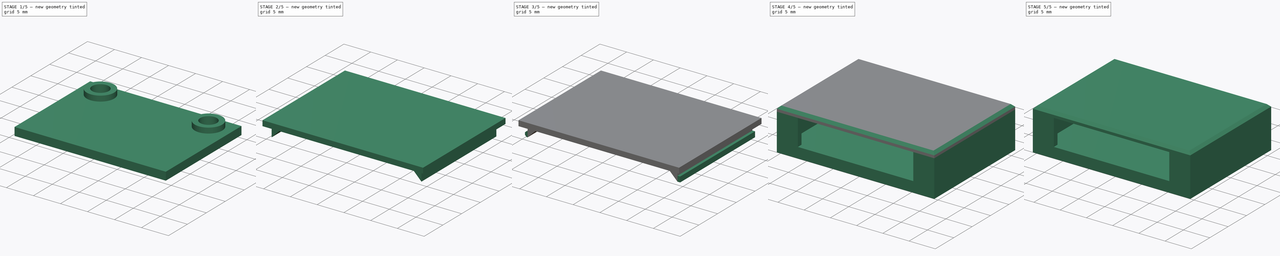
[diagram: build sequence overview — one tinted view per stage of 5, left to right]
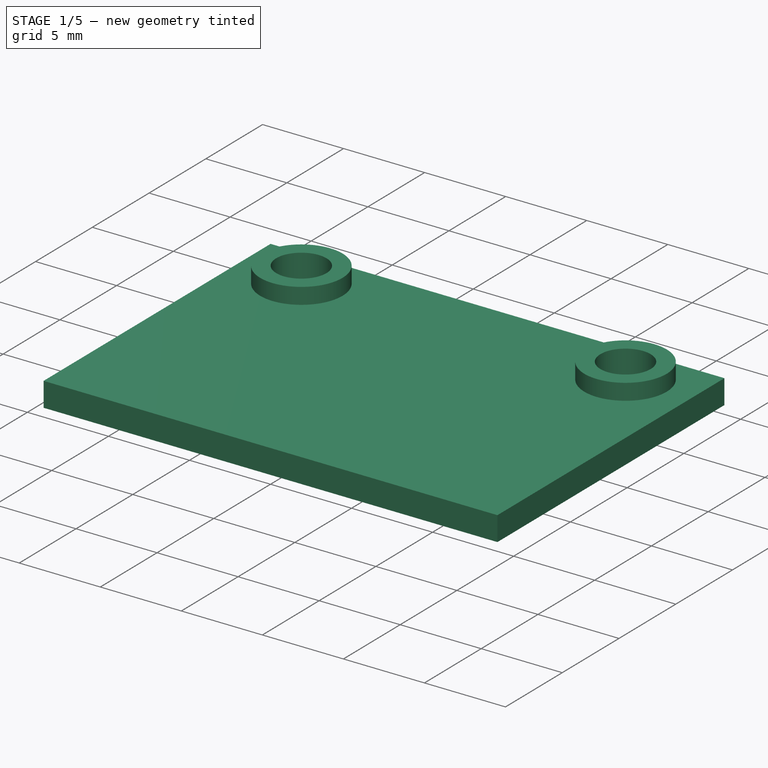
[diagram: stage 1 of 5 — iso view after this stage's code; geometry added in this stage tinted green]
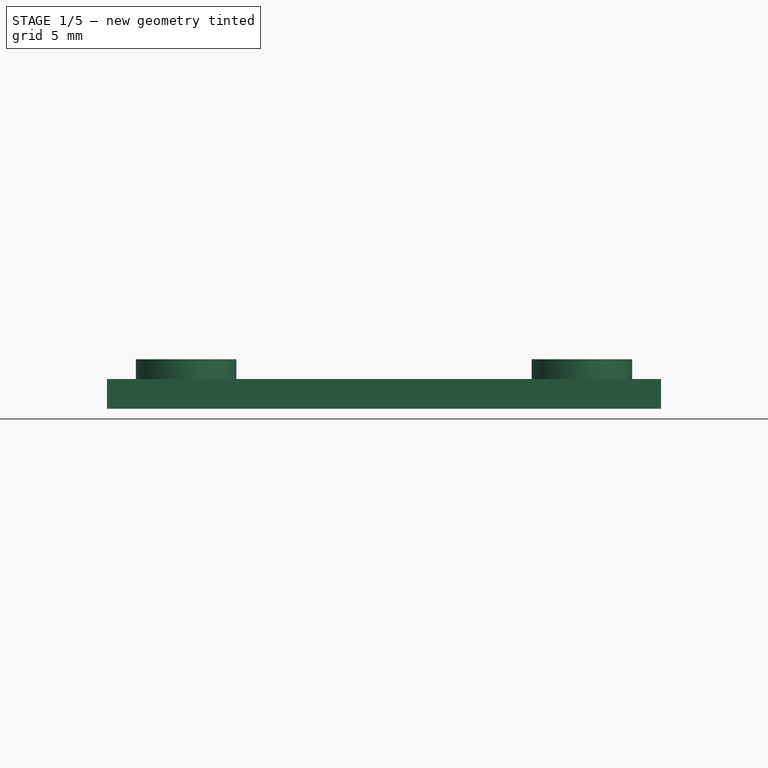
[diagram: stage 1 of 5 — front view after this stage's code; geometry added in this stage tinted green]
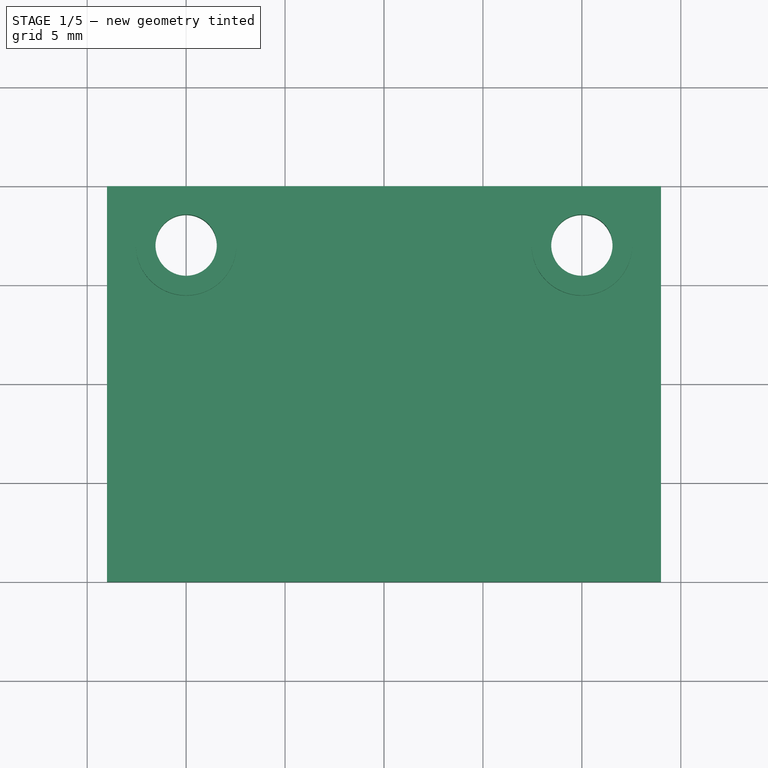
[diagram: stage 1 of 5 — top view after this stage's code; geometry added in this stage tinted green]
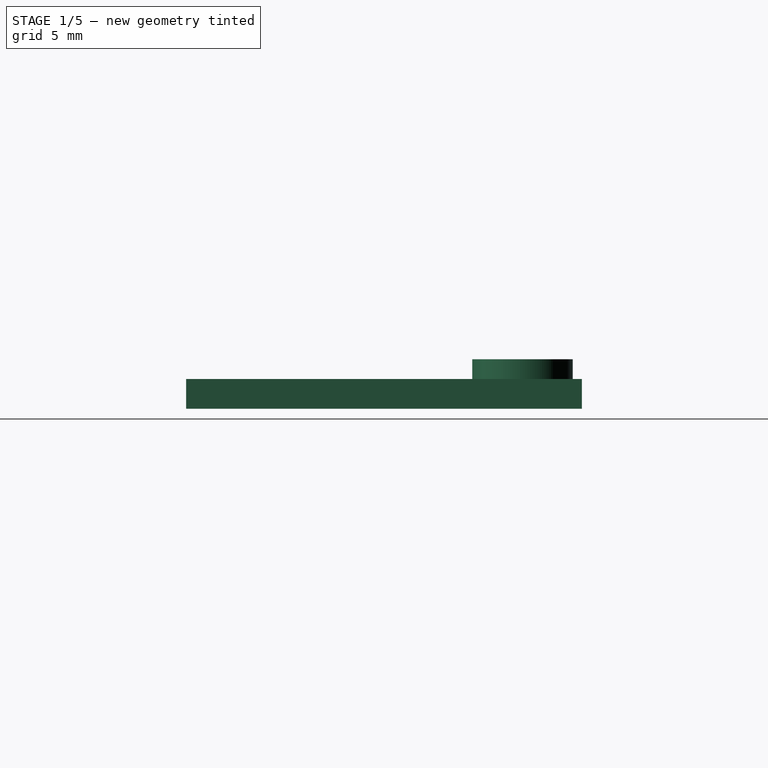
[diagram: stage 1 of 5 — right view after this stage's code; geometry added in this stage tinted green]
FCSTD DOCUMENT  (FreeCAD 0.18R16093 +53 (Git))
Label: imu_housing
License: All rights reserved
LicenseURL: http://en.wikipedia.org/wiki/All_rights_reserved
objects: Sketcher::SketchObject×11, PartDesign::Chamfer×9, PartDesign::Pad×7, PartDesign::Pocket×6, PartDesign::Body×2, PartDesign::Plane×1, PartDesign::ShapeBinder×1
note: 50 computed .brp shape members not serialized (recipe doc carries the construction recipe); baked Part::Feature solids carry a one-line shape summary decoded from their .brp

FEATURE [Sketcher::SketchObject] Sketch
  MapMode = 5
  Support = -> [XY_Plane]
  sketch-geometry (7):
    g0: LineSegment StartX=-14 StartY=10 StartZ=0 EndX=14 EndY=10 EndZ=0
    g1: LineSegment StartX=14 StartY=10 StartZ=0 EndX=14 EndY=-10 EndZ=0
    g2: LineSegment StartX=14 StartY=-10 StartZ=0 EndX=-14 EndY=-10 EndZ=0
    g3: LineSegment StartX=-14 StartY=-10 StartZ=0 EndX=-14 EndY=10 EndZ=0
    g4: LineSegment [constr] StartX=-14 StartY=10 StartZ=0 EndX=0 EndY=-1.8e-15 EndZ=0
    g5: LineSegment [constr] StartX=0 StartY=-1.8e-15 StartZ=0 EndX=14 EndY=10 EndZ=0
    g6: GeomPoint X=-14 Y=0 Z=0
  constraints (17):
    c: Coincident(g0,g1)
    c: Coincident(g1,g2)
    c: Coincident(g2,g3)
    c: Coincident(g3,g0)
    c: Horizontal(g0)
    c: Horizontal(g2)
    c: Vertical(g1)
    c: Vertical(g3)
    c: DistanceX(g0,g0) = 28
    c: DistanceY(g3,g3) = 20
    c: Coincident(g4,g0)
    c: Coincident(g4,g-1)
    c: Coincident(g5,g4)
    c: Coincident(g5,g0)
    c: Equal(g4,g5)
    c: Symmetric(g0,g2,g6)
    c: PointOnObject(g6,g-1)
FEATURE [PartDesign::Pad] Pad
  Length = 1.5
  Length2 = 100
  Profile = -> Sketch
  Reversed = true
  Type = 0
FEATURE [Sketcher::SketchObject] Sketch001
  ExternalGeometry = -> [Sketch]
  MapMode = 5
  Support = -> [Pad]
  sketch-geometry (6):
    g0: Circle CenterX=-10 CenterY=7 CenterZ=0 NormalX=0 NormalY=0 NormalZ=1 AngleXU=0 Radius=1.55
    g1: Circle CenterX=10 CenterY=7 CenterZ=0 NormalX=0 NormalY=0 NormalZ=1 AngleXU=0 Radius=1.55
    g2: LineSegment [constr] StartX=-10 StartY=7 StartZ=0 EndX=0 EndY=9e-16 EndZ=0
    g3: LineSegment [constr] StartX=0 StartY=0 StartZ=0 EndX=10 EndY=7 EndZ=0
    g4: Circle CenterX=-10 CenterY=7 CenterZ=0 NormalX=0 NormalY=0 NormalZ=1 AngleXU=0 Radius=2.53993
    g5: Circle CenterX=10 CenterY=7 CenterZ=0 NormalX=0 NormalY=0 NormalZ=1 AngleXU=0 Radius=2.53993
  constraints (13):
    c: Diameter(g0) = 3.1
    c: Equal(g0,g1)
    c: Horizontal(g0,g1)
    c: Coincident(g2,g0)
    c: Coincident(g2,g-1)
    c: Coincident(g3,g-1)
    c: Coincident(g3,g1)
    c: Equal(g2,g3)
    c: DistanceX(g0,g1) = 20
    c: DistanceY(g0,g-3) = 3
    c: Coincident(g4,g0)
    c: Coincident(g5,g1)
    c: Equal(g4,g5)
FEATURE [PartDesign::Pad] Pad001
  BaseFeature = -> Pad
  Length = 1
  Length2 = 100
  Profile = -> Sketch001
  Type = 0
FEATURE [PartDesign::Pocket] Pocket
  BaseFeature = -> Pad001
  Length = 5
  Length2 = 100
  Profile = -> Pad001 [Face14]
  Type = 1
FEATURE [PartDesign::Pocket] Pocket001
  BaseFeature = -> Pocket
  Length = 5
  Length2 = 100
  Profile = -> Pocket [Face14]
  Type = 1
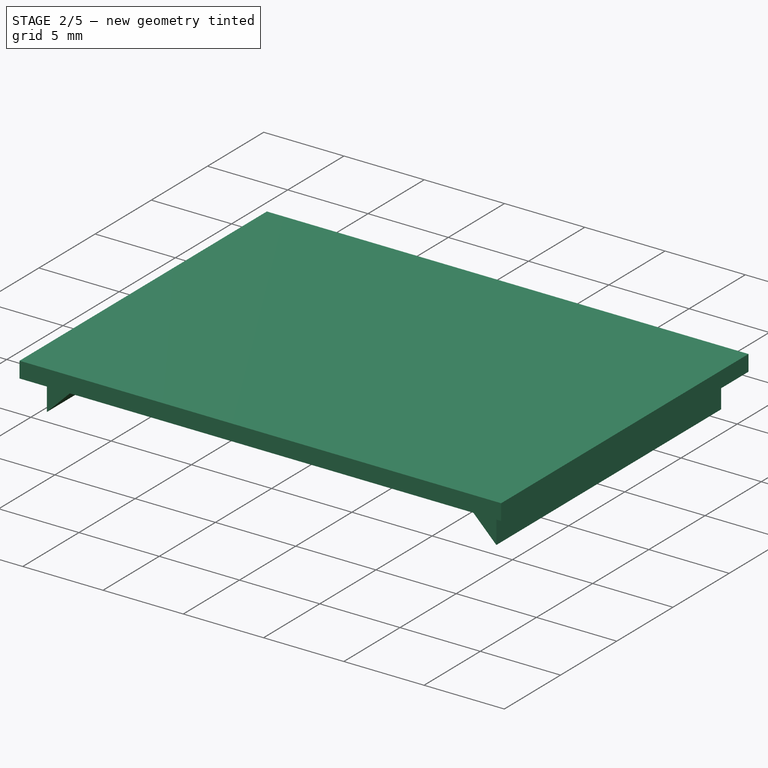
[diagram: stage 2 of 5 — iso view after this stage's code; geometry added in this stage tinted green]
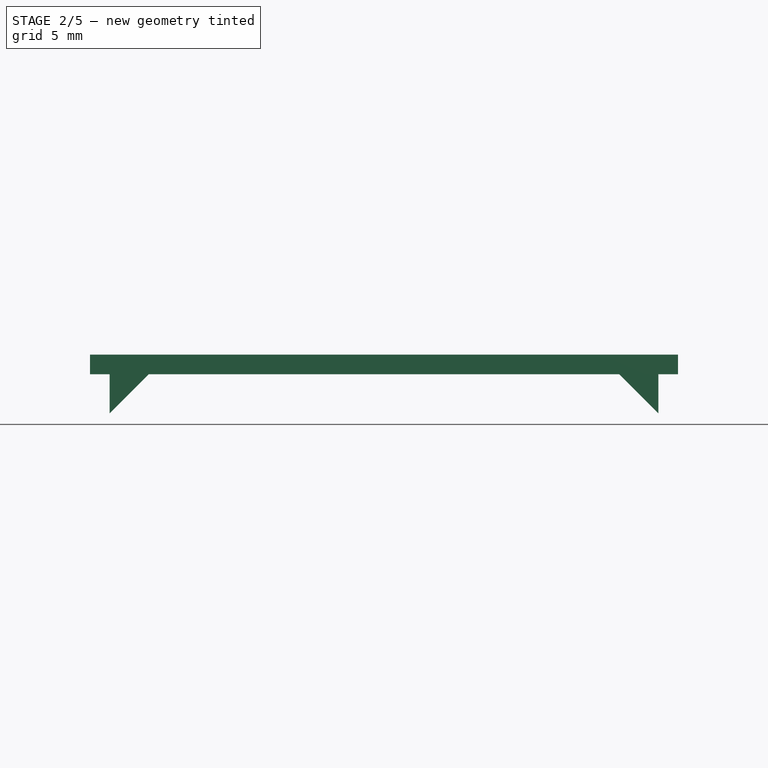
[diagram: stage 2 of 5 — front view after this stage's code; geometry added in this stage tinted green]
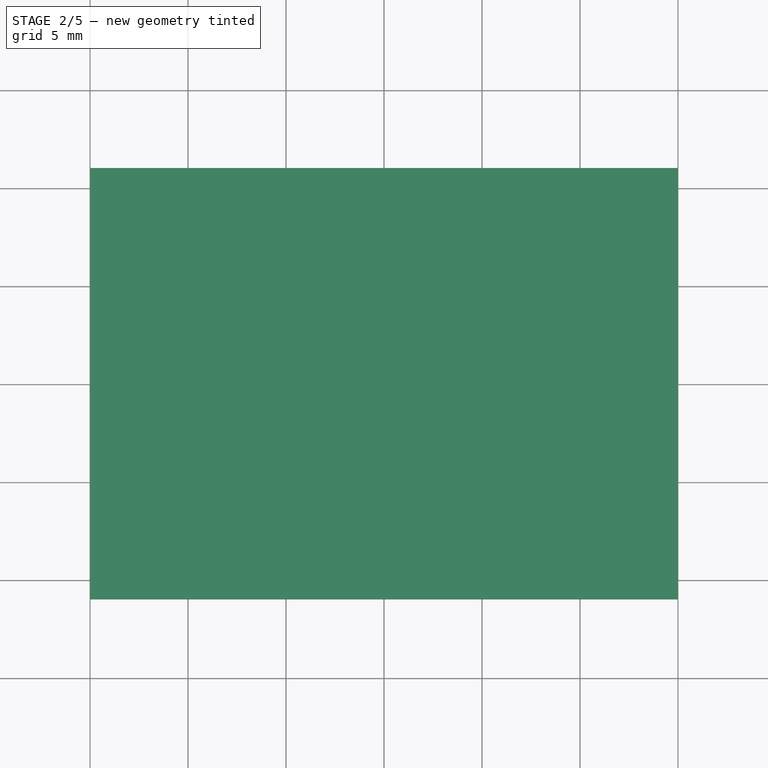
[diagram: stage 2 of 5 — top view after this stage's code; geometry added in this stage tinted green]
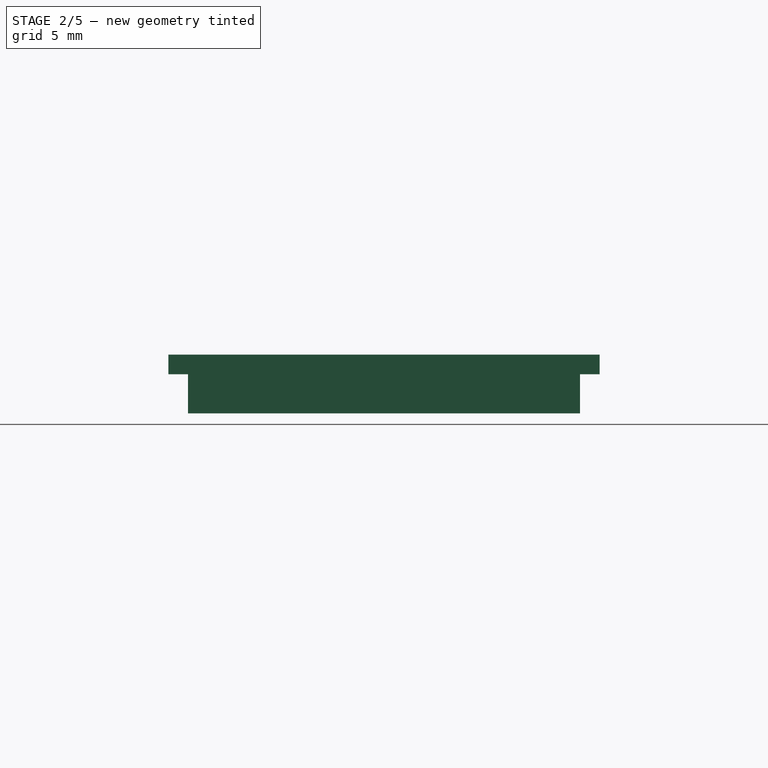
[diagram: stage 2 of 5 — right view after this stage's code; geometry added in this stage tinted green]
FEATURE [PartDesign::Plane] DatumPlane
  Length = 35.1381
  MapMode = 5
  Placement = pos=(0,0,-1.5) rot=(1,0,0;3.14159rad)
  ResizeMode = 0
  Support = -> [Pocket001]
  Width = 27.1381
FEATURE [Sketcher::SketchObject] Sketch002
  ExternalGeometry = -> [Sketch]
  MapMode = 5
  Placement = pos=(0,0,-1.5) rot=(1,0,0;3.14159rad)
  Support = -> [DatumPlane]
  sketch-geometry (8):
    g0: LineSegment StartX=-14 StartY=-10 StartZ=0 EndX=14 EndY=-10 EndZ=0
    g1: LineSegment StartX=14 StartY=-10 StartZ=0 EndX=14 EndY=10 EndZ=0
    g2: LineSegment StartX=14 StartY=10 StartZ=0 EndX=-14 EndY=10 EndZ=0
    g3: LineSegment StartX=-14 StartY=10 StartZ=0 EndX=-14 EndY=-10 EndZ=0
    g4: LineSegment StartX=-15 StartY=11 StartZ=0 EndX=15 EndY=11 EndZ=0
    g5: LineSegment StartX=15 StartY=11 StartZ=0 EndX=15 EndY=-11 EndZ=0
    g6: LineSegment StartX=15 StartY=-11 StartZ=0 EndX=-15 EndY=-11 EndZ=0
    g7: LineSegment StartX=-15 StartY=-11 StartZ=0 EndX=-15 EndY=11 EndZ=0
  constraints (20):
    c: Coincident(g0,g1)
    c: Coincident(g1,g2)
    c: Coincident(g2,g3)
    c: Coincident(g3,g0)
    c: Tangent(g2,g-5)
    c: Tangent(g3,g-3)
    c: Tangent(g1,g-7)
    c: Tangent(g0,g-4)
    c: Coincident(g4,g5)
    c: Coincident(g5,g6)
    c: Coincident(g6,g7)
    c: Coincident(g7,g4)
    c: Horizontal(g4)
    c: Horizontal(g6)
    c: Vertical(g5)
    c: Vertical(g7)
    c: DistanceY(g2,g4) = 1
    c: DistanceX(g4,g2) = 1
    c: DistanceX(g0,g5) = 1
    c: DistanceY(g5,g0) = 1
FEATURE [PartDesign::Pad] Pad002
  BaseFeature = -> Pocket001
  Length = 7
  Length2 = 100
  Profile = -> Sketch002
  Reversed = true
  Type = 0
FEATURE [Sketcher::SketchObject] Sketch003
  ExternalGeometry = -> [Pad002]
  MapMode = 5
  Placement = pos=(0,-11,0) rot=(1,0,0;1.5708rad)
  Support = -> [Pad002]
  sketch-geometry (6):
    g0: LineSegment StartX=-11 StartY=5.5 StartZ=0 EndX=11 EndY=5.5 EndZ=0
    g1: LineSegment StartX=11 StartY=5.5 StartZ=0 EndX=11 EndY=0.5 EndZ=0
    g2: LineSegment StartX=11 StartY=0.5 StartZ=0 EndX=-11 EndY=0.5 EndZ=0
    g3: LineSegment StartX=-11 StartY=0.5 StartZ=0 EndX=-11 EndY=5.5 EndZ=0
    g4: LineSegment [constr] StartX=-11 StartY=5.5 StartZ=0 EndX=0 EndY=0 EndZ=0
    g5: LineSegment [constr] StartX=0 StartY=0 StartZ=0 EndX=11 EndY=5.5 EndZ=0
  constraints (15):
    c: Coincident(g0,g1)
    c: Coincident(g1,g2)
    c: Coincident(g2,g3)
    c: Coincident(g3,g0)
    c: Horizontal(g2)
    c: Vertical(g1)
    c: Vertical(g3)
    c: Tangent(g0,g-5)
    c: DistanceY(g3,g3) = 5
    c: Coincident(g4,g0)
    c: Coincident(g4,g-1)
    c: Coincident(g5,g-1)
    c: Coincident(g5,g0)
    c: Equal(g4,g5)
    c: DistanceX(g2,g-1) = 11
FEATURE [PartDesign::Pocket] Pocket002
  BaseFeature = -> Pad002
  Length = 2
  Length2 = 100
  Profile = -> Sketch003
  Type = 0
FEATURE [PartDesign::ShapeBinder] ShapeBinder
  Support = -> [Pocket002]
  TraceSupport = false
FEATURE [Sketcher::SketchObject] Sketch004
  ExternalGeometry = -> [ShapeBinder]
  MapMode = 5
  Placement = pos=(0,0,5.5) rot=(0,0,1;0rad)
  Support = -> [ShapeBinder]
  sketch-geometry (4):
    g0: LineSegment StartX=-15 StartY=11 StartZ=0 EndX=15 EndY=11 EndZ=0
    g1: LineSegment StartX=15 StartY=11 StartZ=0 EndX=15 EndY=-11 EndZ=0
    g2: LineSegment StartX=15 StartY=-11 StartZ=0 EndX=-15 EndY=-11 EndZ=0
    g3: LineSegment StartX=-15 StartY=-11 StartZ=0 EndX=-15 EndY=11 EndZ=0
  constraints (10):
    c: Coincident(g0,g1)
    c: Coincident(g1,g2)
    c: Coincident(g2,g3)
    c: Coincident(g3,g0)
    c: Horizontal(g0)
    c: Horizontal(g2)
    c: Vertical(g1)
    c: Vertical(g3)
    c: Coincident(g0,g-4)
    c: Coincident(g1,g-5)
FEATURE [PartDesign::Pad] Pad003
  Length = 1
  Length2 = 100
  Profile = -> Sketch004
  Type = 0
FEATURE [Sketcher::SketchObject] Sketch005
  ExternalGeometry = -> [ShapeBinder]
  MapMode = 5
  Placement = pos=(0,0,5.5) rot=(1,0,0;3.14159rad)
  Support = -> [Pad003]
  sketch-geometry (8):
    g0: LineSegment StartX=-14 StartY=10 StartZ=0 EndX=-12 EndY=10 EndZ=0
    g1: LineSegment StartX=-12 StartY=10 StartZ=0 EndX=-12 EndY=-10 EndZ=0
    g2: LineSegment StartX=-12 StartY=-10 StartZ=0 EndX=-14 EndY=-10 EndZ=0
    g3: LineSegment StartX=-14 StartY=-10 StartZ=0 EndX=-14 EndY=10 EndZ=0
    g4: LineSegment StartX=14 StartY=10 StartZ=0 EndX=12 EndY=10 EndZ=0
    g5: LineSegment StartX=12 StartY=10 StartZ=0 EndX=12 EndY=-10 EndZ=0
    g6: LineSegment StartX=12 StartY=-10 StartZ=0 EndX=14 EndY=-10 EndZ=0
    g7: LineSegment StartX=14 StartY=-10 StartZ=0 EndX=14 EndY=10 EndZ=0
  constraints (20):
    c: Coincident(g0,g1)
    c: Coincident(g1,g2)
    c: Coincident(g2,g3)
    c: Coincident(g3,g0)
    c: Horizontal(g0)
    c: Horizontal(g2)
    c: Vertical(g1)
    c: Coincident(g0,g-3)
    c: Coincident(g-3,g2)
    c: DistanceX(g0,g0) = 2
    c: Coincident(g4,g5)
    c: Coincident(g5,g6)
    c: Coincident(g6,g7)
    c: Coincident(g7,g4)
    c: Horizontal(g4)
    c: Horizontal(g6)
    c: Vertical(g5)
    c: Coincident(g4,g-4)
    c: Coincident(g6,g-4)
    c: Equal(g0,g4)
FEATURE [PartDesign::Pad] Pad004
  BaseFeature = -> Pad003
  Length = 2
  Length2 = 100
  Profile = -> Sketch005
  Type = 0
FEATURE [Sketcher::SketchObject] Sketch006
  ExternalGeometry = -> [Pad004]
  MapMode = 5
  Placement = pos=(0,-10,0) rot=(1,0,0;1.5708rad)
  Support = -> [Pad004]
  sketch-geometry (6):
    g0: LineSegment StartX=-14 StartY=3.5 StartZ=0 EndX=-12 EndY=5.5 EndZ=0
    g1: LineSegment StartX=-14 StartY=3.5 StartZ=0 EndX=-12 EndY=3.5 EndZ=0
    g2: LineSegment StartX=-12 StartY=3.5 StartZ=0 EndX=-12 EndY=5.5 EndZ=0
    g3: LineSegment StartX=12 StartY=5.5 StartZ=0 EndX=14 EndY=3.5 EndZ=0
    g4: LineSegment StartX=12 StartY=3.5 StartZ=0 EndX=12 EndY=5.5 EndZ=0
    g5: LineSegment StartX=12 StartY=3.5 StartZ=0 EndX=14 EndY=3.5 EndZ=0
  constraints (12):
    c: Coincident(g0,g-5)
    c: Coincident(g0,g-3)
    c: Coincident(g1,g-4)
    c: Coincident(g2,g1)
    c: Coincident(g2,g0)
    c: Coincident(g0,g1)
    c: Coincident(g4,g3)
    c: Coincident(g5,g4)
    c: Coincident(g5,g3)
    c: Coincident(g3,g-6)
    c: Coincident(g4,g-7)
    c: Coincident(g-8,g3)
FEATURE [PartDesign::Pocket] Pocket003
  BaseFeature = -> Pad004
  Length = 5
  Length2 = 100
  Profile = -> Sketch006
  Type = 1
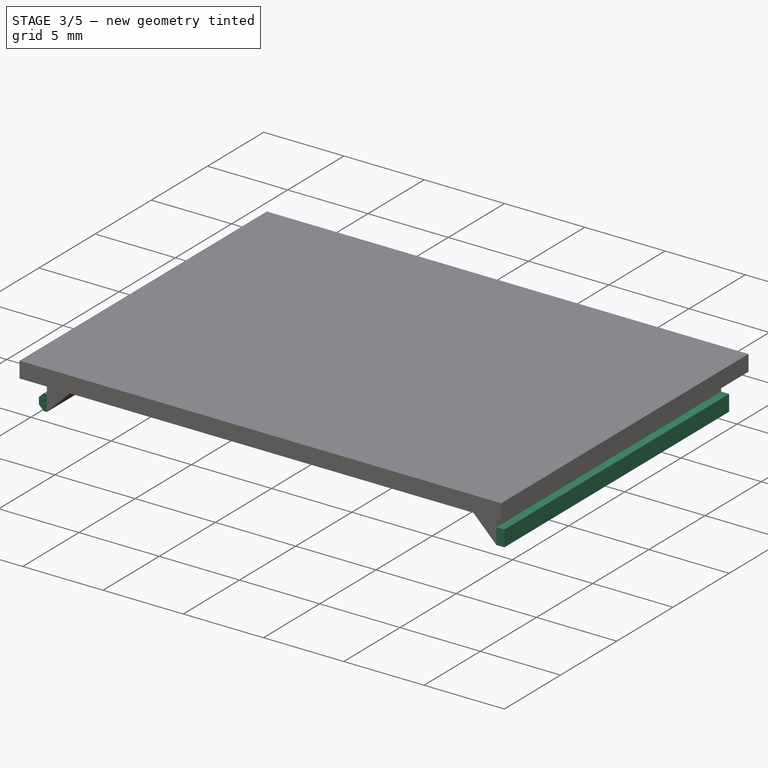
[diagram: stage 3 of 5 — iso view after this stage's code; geometry added in this stage tinted green]
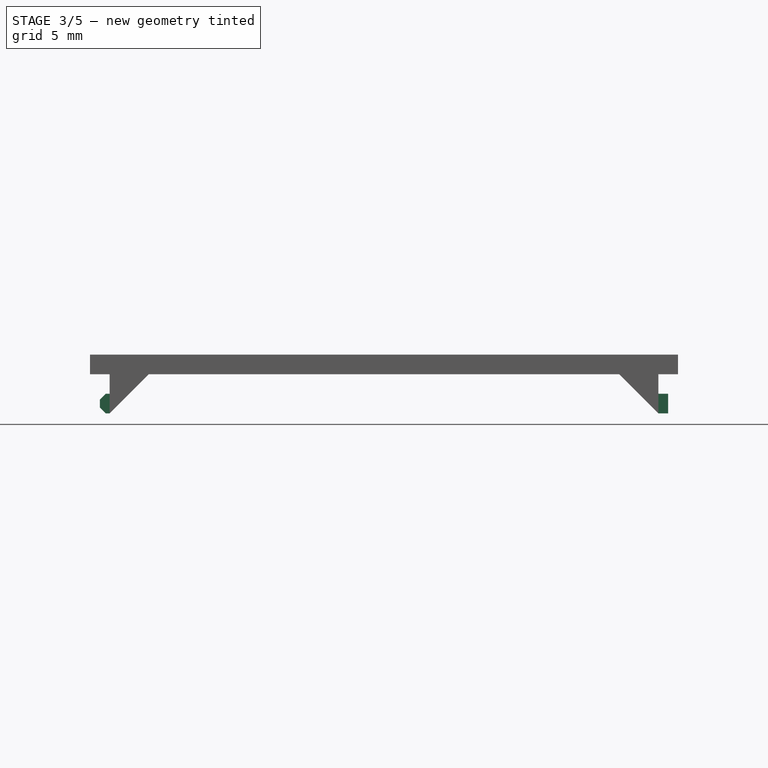
[diagram: stage 3 of 5 — front view after this stage's code; geometry added in this stage tinted green]
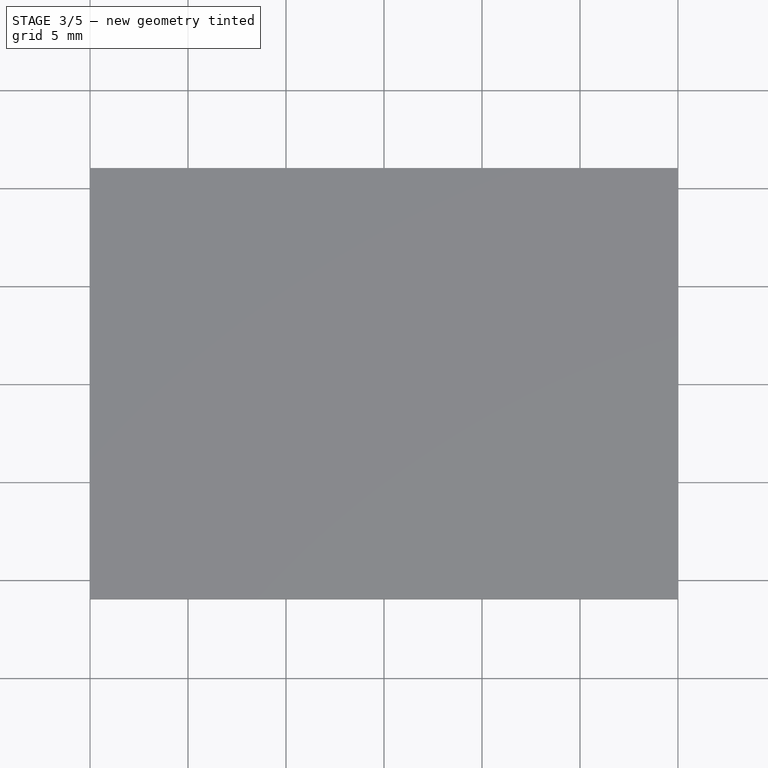
[diagram: stage 3 of 5 — top view after this stage's code; geometry added in this stage tinted green]
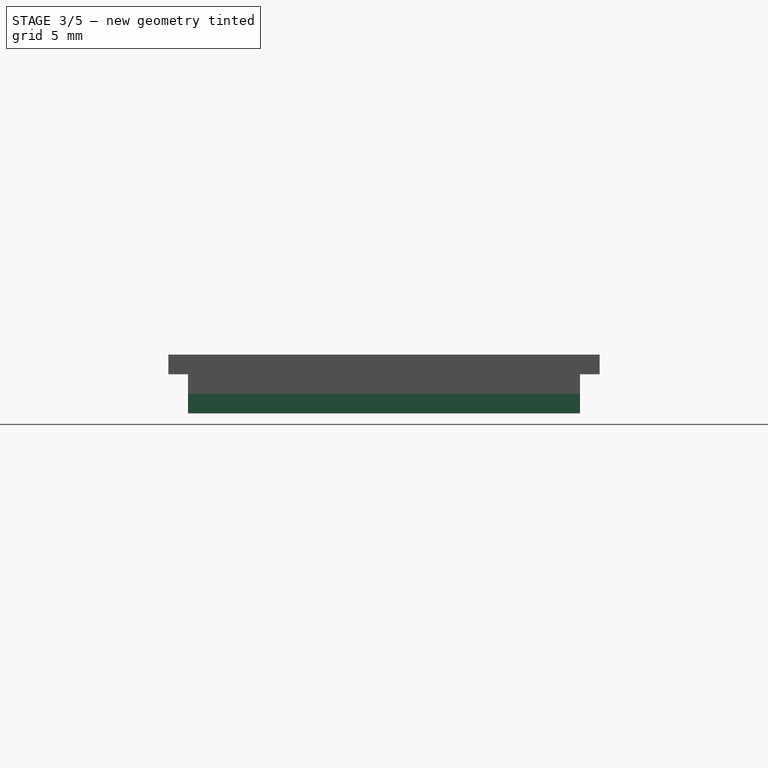
[diagram: stage 3 of 5 — right view after this stage's code; geometry added in this stage tinted green]
FEATURE [Sketcher::SketchObject] Sketch007
  ExternalGeometry = -> [Pocket003]
  MapMode = 5
  Placement = pos=(-14,0,0) rot=(0.57735,-0.57735,-0.57735;2.0944rad)
  Support = -> [Pocket003]
  sketch-geometry (4):
    g0: LineSegment StartX=-10 StartY=3.5 StartZ=0 EndX=10 EndY=3.5 EndZ=0
    g1: LineSegment StartX=10 StartY=3.5 StartZ=0 EndX=10 EndY=4.5 EndZ=0
    g2: LineSegment StartX=10 StartY=4.5 StartZ=0 EndX=-10 EndY=4.5 EndZ=0
    g3: LineSegment StartX=-10 StartY=4.5 StartZ=0 EndX=-10 EndY=3.5 EndZ=0
  constraints (10):
    c: Coincident(g0,g1)
    c: Coincident(g1,g2)
    c: Coincident(g2,g3)
    c: Coincident(g3,g0)
    c: Horizontal(g2)
    c: Vertical(g1)
    c: Vertical(g3)
    c: Coincident(g-3,g0)
    c: Coincident(g0,g-4)
    c: DistanceY(g3,g3) = 1
FEATURE [PartDesign::Pad] Pad005
  BaseFeature = -> Pocket003
  Length = 0.5
  Length2 = 100
  Profile = -> Sketch007
  Type = 0
FEATURE [PartDesign::Chamfer] Chamfer
  Base = -> Pad005 [Edge44]
  BaseFeature = -> Pad005
  Size = 0.3
FEATURE [PartDesign::Chamfer] Chamfer001
  Base = -> Chamfer [Edge14]
  BaseFeature = -> Chamfer
  Size = 0.3
FEATURE [Sketcher::SketchObject] Sketch008
  ExternalGeometry = -> [Chamfer001]
  MapMode = 5
  Placement = pos=(14,0,0) rot=(0.57735,0.57735,0.57735;2.0944rad)
  Support = -> [Chamfer001]
  sketch-geometry (4):
    g0: LineSegment StartX=-10 StartY=4.5 StartZ=0 EndX=10 EndY=4.5 EndZ=0
    g1: LineSegment StartX=10 StartY=4.5 StartZ=0 EndX=10 EndY=3.5 EndZ=0
    g2: LineSegment StartX=10 StartY=3.5 StartZ=0 EndX=-10 EndY=3.5 EndZ=0
    g3: LineSegment StartX=-10 StartY=3.5 StartZ=0 EndX=-10 EndY=4.5 EndZ=0
  constraints (10):
    c: Coincident(g0,g1)
    c: Coincident(g1,g2)
    c: Coincident(g2,g3)
    c: Coincident(g3,g0)
    c: Horizontal(g0)
    c: Vertical(g1)
    c: Vertical(g3)
    c: Coincident(g2,g-4)
    c: Coincident(g-3,g1)
    c: DistanceY(g3,g3) = 1
FEATURE [PartDesign::Pad] Pad006
  BaseFeature = -> Chamfer001
  Length = 0.5
  Length2 = 100
  Profile = -> Sketch008
  Type = 0
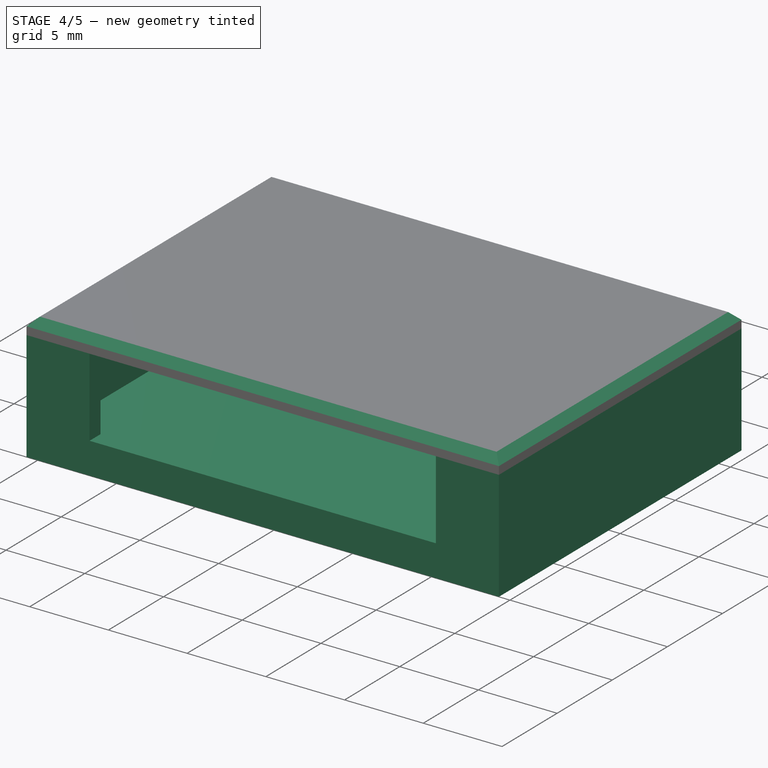
[diagram: stage 4 of 5 — iso view after this stage's code; geometry added in this stage tinted green]
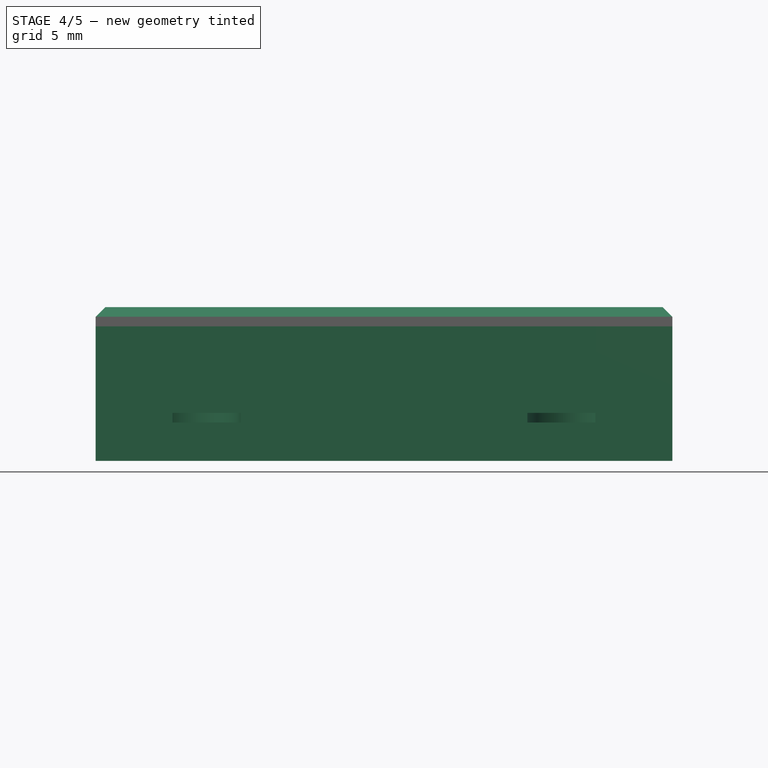
[diagram: stage 4 of 5 — front view after this stage's code; geometry added in this stage tinted green]
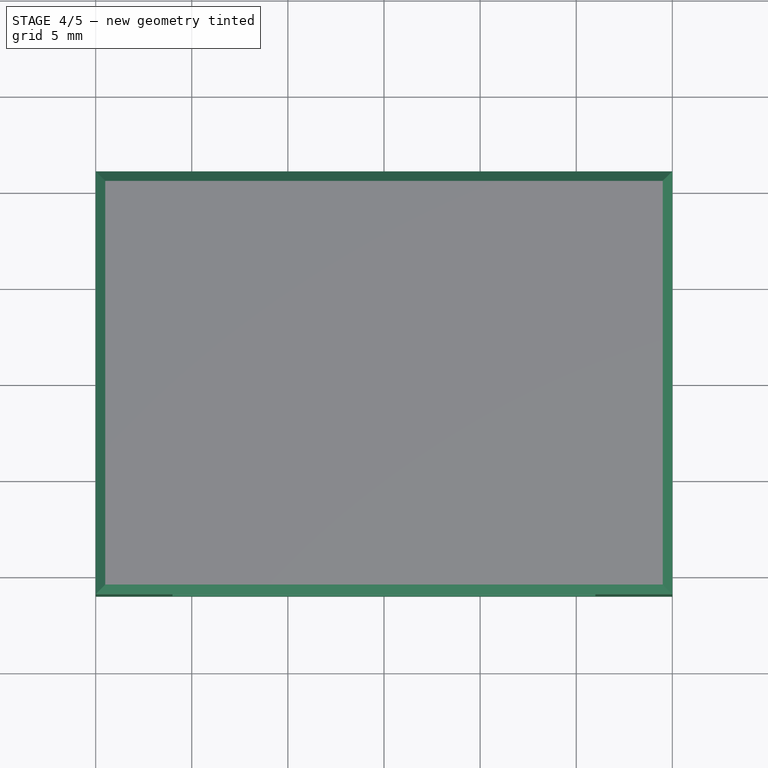
[diagram: stage 4 of 5 — top view after this stage's code; geometry added in this stage tinted green]
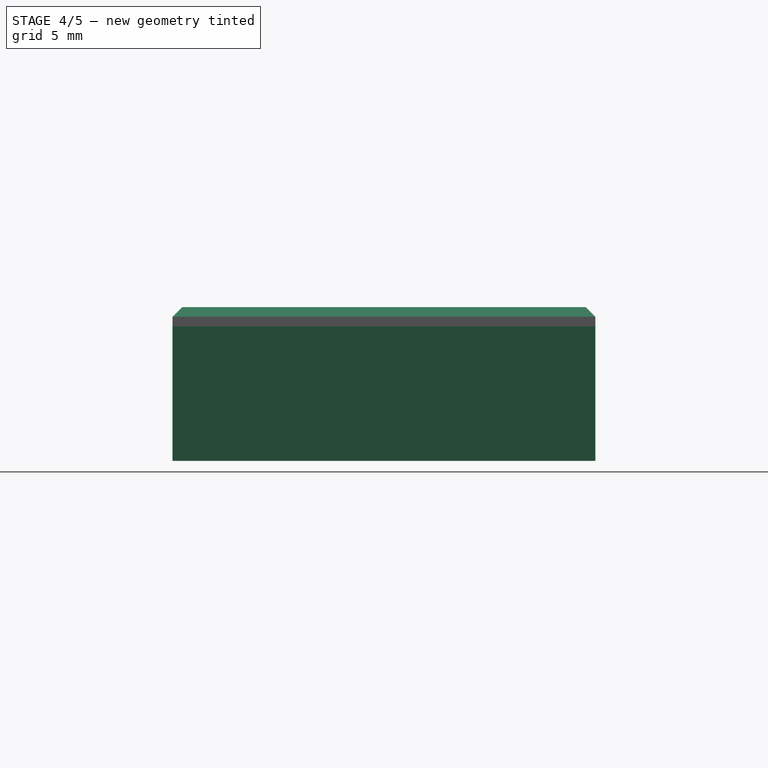
[diagram: stage 4 of 5 — right view after this stage's code; geometry added in this stage tinted green]
FEATURE [PartDesign::Chamfer] Chamfer002
  Base = -> Pad006 [Edge59]
  BaseFeature = -> Pad006
  Size = 0.3
FEATURE [PartDesign::Chamfer] Chamfer003
  Base = -> Chamfer002 [Edge14]
  BaseFeature = -> Chamfer002
  Size = 0.3
FEATURE [Sketcher::SketchObject] Sketch009
  ExternalGeometry = -> [Pocket002]
  MapMode = 5
  Placement = pos=(14,2.649e-13,0) rot=(0.57735,-0.57735,-0.57735;2.0944rad)
  Support = -> [Pocket002]
  sketch-geometry (4):
    g0: LineSegment StartX=-10 StartY=4.5 StartZ=0 EndX=10 EndY=4.5 EndZ=0
    g1: LineSegment StartX=10 StartY=4.5 StartZ=0 EndX=10 EndY=3.5 EndZ=0
    g2: LineSegment StartX=10 StartY=3.5 StartZ=0 EndX=-10 EndY=3.5 EndZ=0
    g3: LineSegment StartX=-10 StartY=3.5 StartZ=0 EndX=-10 EndY=4.5 EndZ=0
  constraints (12):
    c: Coincident(g0,g1)
    c: Coincident(g1,g2)
    c: Coincident(g2,g3)
    c: Coincident(g3,g0)
    c: Horizontal(g0)
    c: Horizontal(g2)
    c: Vertical(g1)
    c: Vertical(g3)
    c: PointOnObject(g2,g-4)
    c: PointOnObject(g1,g-3)
    c: DistanceY(g0,g-5) = 1
    c: DistanceY(g1,g0) = 1
FEATURE [PartDesign::Pocket] Pocket004
  BaseFeature = -> Pocket002
  Length = 0.5
  Length2 = 100
  Profile = -> Sketch009
  Type = 0
FEATURE [Sketcher::SketchObject] Sketch010
  MapMode = 5
  Placement = pos=(-14,-2.636e-13,0) rot=(0.57735,0.57735,0.57735;2.0944rad)
  sketch-geometry (4):
    g0: LineSegment StartX=-10 StartY=4.5 StartZ=0 EndX=10 EndY=4.5 EndZ=0
    g1: LineSegment StartX=10 StartY=4.5 StartZ=0 EndX=10 EndY=3.5 EndZ=0
    g2: LineSegment StartX=10 StartY=3.5 StartZ=0 EndX=-10 EndY=3.5 EndZ=0
    g3: LineSegment StartX=-10 StartY=3.5 StartZ=0 EndX=-10 EndY=4.5 EndZ=0
  constraints (9):
    c: Coincident(g0,g1)
    c: Coincident(g1,g2)
    c: Coincident(g2,g3)
    c: Coincident(g3,g0)
    c: Horizontal(g0)
    c: Horizontal(g2)
    c: Vertical(g1)
    c: Vertical(g3)
    c: DistanceY(g3,g3) = 1
FEATURE [PartDesign::Pocket] Pocket005
  BaseFeature = -> Pocket004
  Length = 0.5
  Length2 = 100
  Profile = -> Sketch010
  Type = 0
FEATURE [PartDesign::Body] Body  label="housing"
  Group = -> [Sketch,Pad,Sketch001,Pad001,Pocket,Pocket001,DatumPlane,Sketch002,Pad002,Sketch003,Pocket002,Sketch009,Pocket004,Sketch010,Pocket005,Chamfer004,Chamfer005,Chamfer006,Chamfer007]
  Origin = -> Origin
  Tip = -> Chamfer007
FEATURE [PartDesign::Chamfer] Chamfer008
  Base = -> Chamfer003 [Edge45,Edge46,Edge41,Edge43]
  BaseFeature = -> Chamfer003
  Size = 0.5
FEATURE [PartDesign::Body] Body001  label="lid"
  Group = -> [ShapeBinder,Sketch004,Pad003,Sketch005,Pad004,Sketch006,Pocket003,Sketch007,Pad005,Chamfer,Chamfer001,Sketch008,Pad006,Chamfer002,Chamfer003,Chamfer008]
  Origin = -> Origin001
  Tip = -> Chamfer008
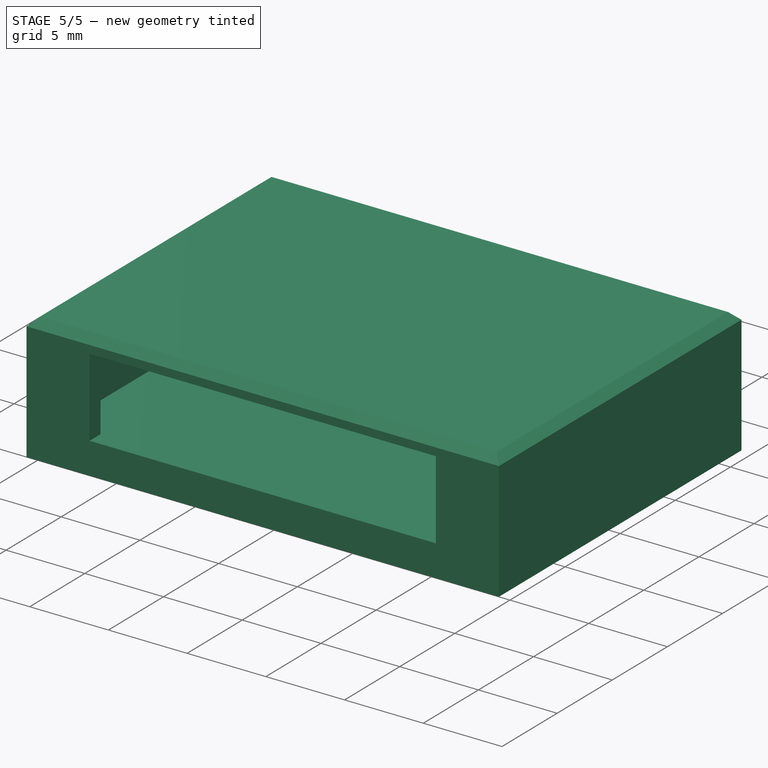
[diagram: stage 5 of 5 — iso view after this stage's code; geometry added in this stage tinted green]
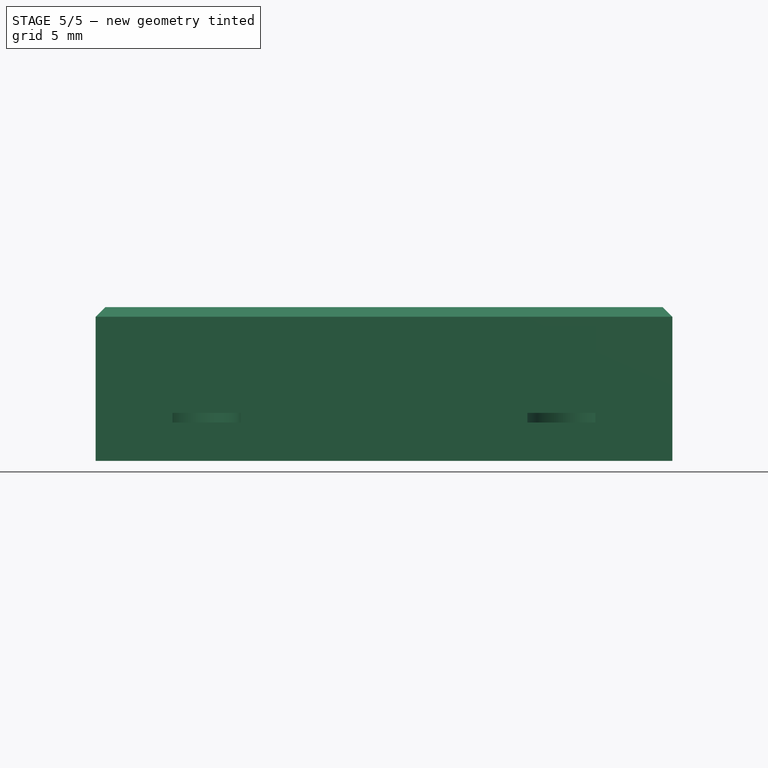
[diagram: stage 5 of 5 — front view after this stage's code; geometry added in this stage tinted green]
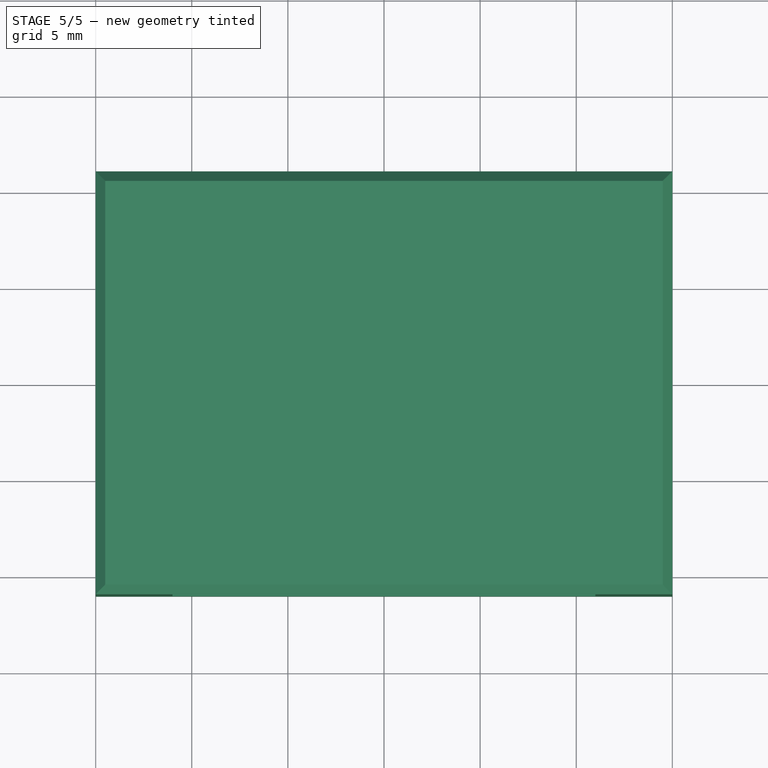
[diagram: stage 5 of 5 — top view after this stage's code; geometry added in this stage tinted green]
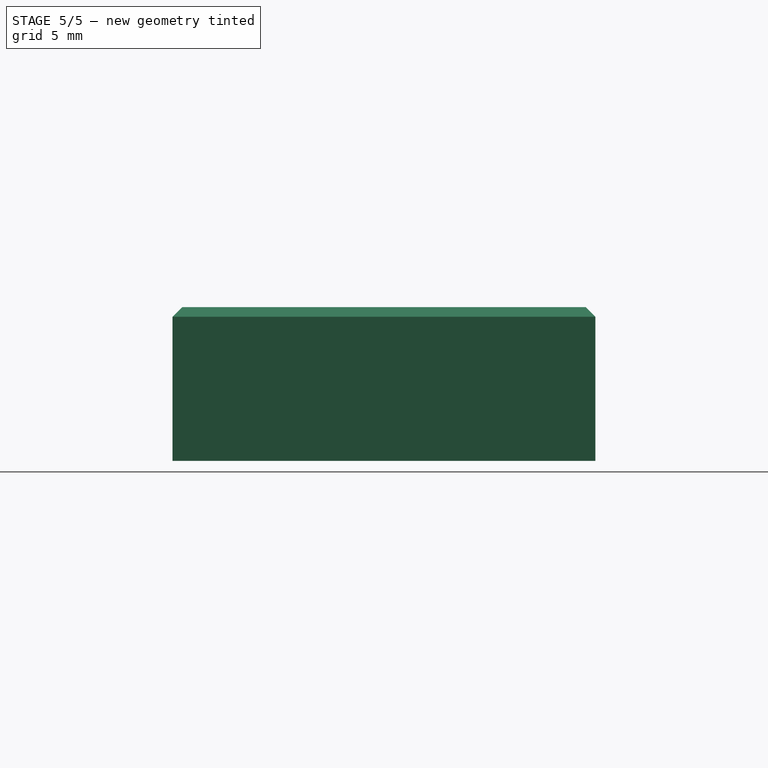
[diagram: stage 5 of 5 — right view after this stage's code; geometry added in this stage tinted green]
FEATURE [PartDesign::Chamfer] Chamfer004
  Base = -> Pocket005 [Edge51]
  BaseFeature = -> Pocket005
  Size = 0.3
FEATURE [PartDesign::Chamfer] Chamfer005
  Base = -> Chamfer004 [Edge19]
  BaseFeature = -> Chamfer004
  Size = 0.3
FEATURE [PartDesign::Chamfer] Chamfer006
  Base = -> Chamfer005 [Edge73]
  BaseFeature = -> Chamfer005
  Size = 0.3
FEATURE [PartDesign::Chamfer] Chamfer007
  Base = -> Chamfer006 [Edge18]
  BaseFeature = -> Chamfer006
  Size = 0.3
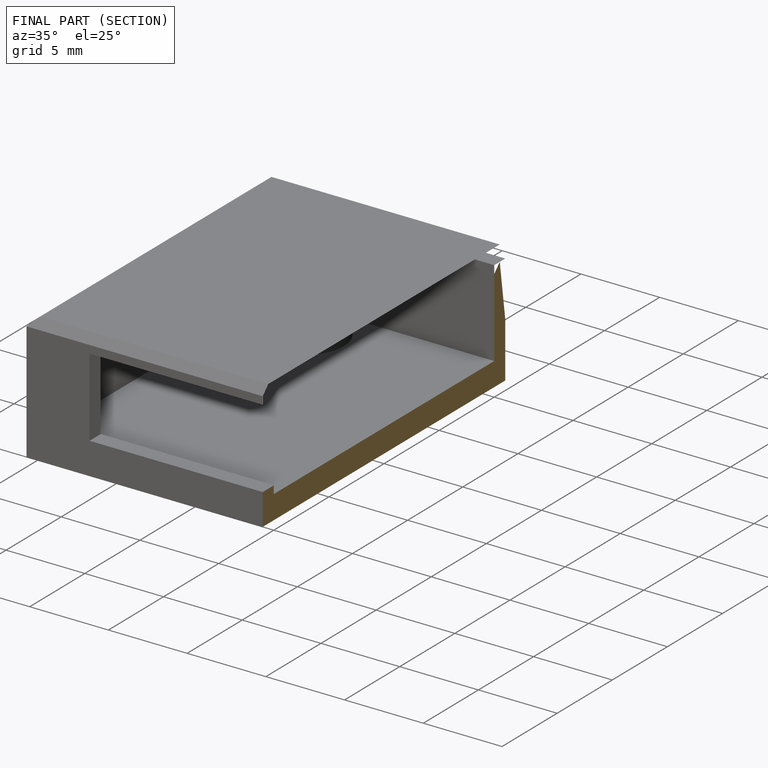
[diagram: finished part — half-section view (interior)]
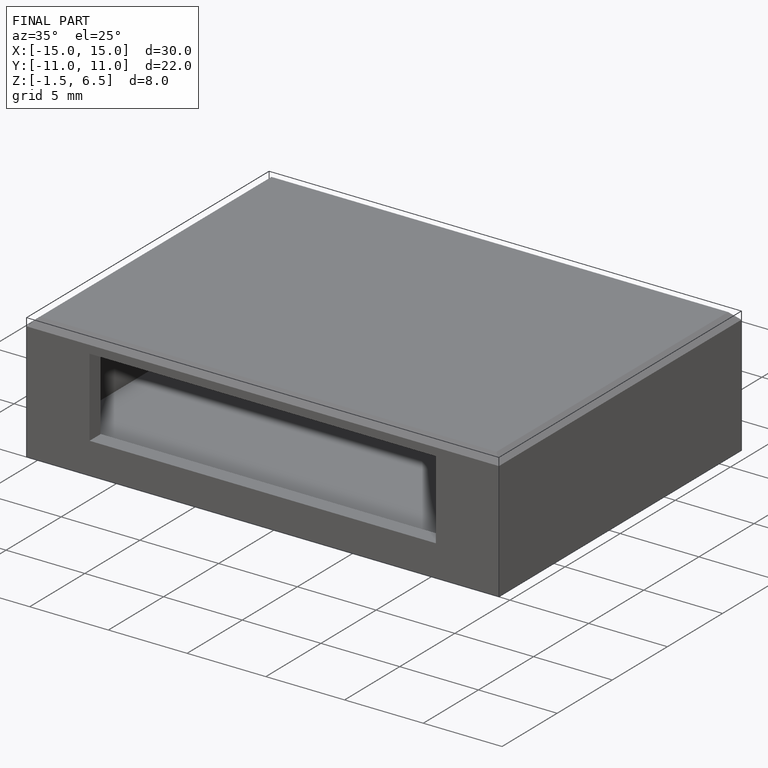
[diagram: finished part — iso view with bounding-box wireframe]
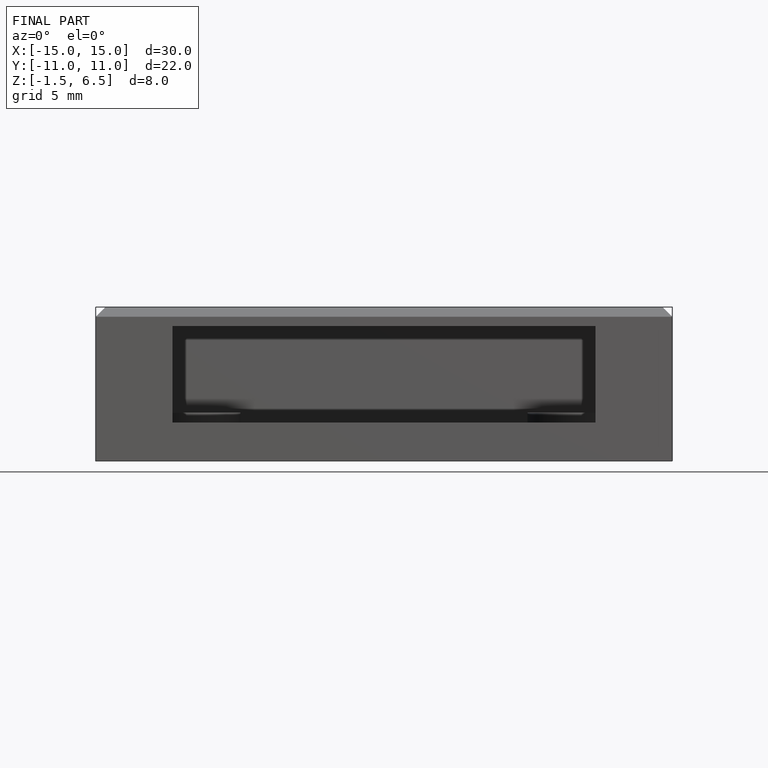
[diagram: finished part — front view with bounding-box wireframe]
